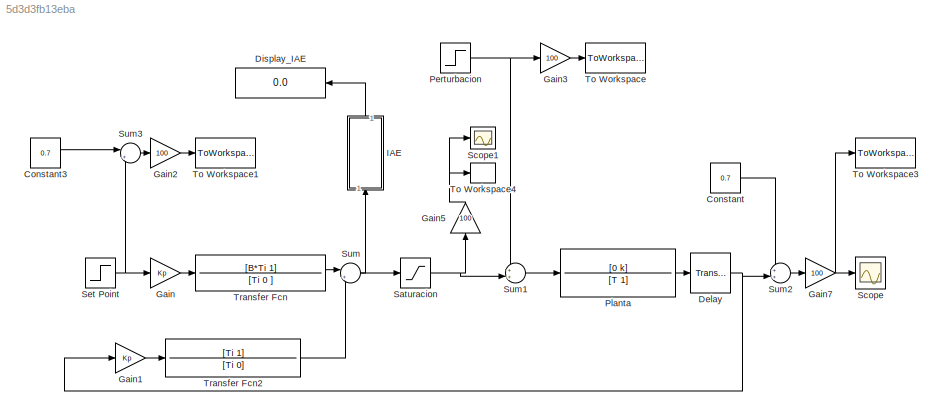
MODEL slx_5d3d3fb13eba
KIND model
CONFIG AbsTol = auto
CONFIG EnableMultiTasking = off
CONFIG FixedStep = auto
CONFIG MaxStep = auto
CONFIG MinStep = auto
CONFIG RelTol = 1e-3
CONFIG SampleTimeConstraint = Unconstrained
CONFIG Solver = VariableStepAuto
CONFIG SolverName = VariableStepAuto
CONFIG StartTime = 0.0
CONFIG StopTime = 150
BLOCK [Constant] Constant
  Value = 0.7
BLOCK [Constant] Constant3
  Value = 0.7
BLOCK [TransportDelay] Delay
  DelayTime = L
  Ports = [1, 1]
BLOCK [Display] Display_IAE 
  Decimation = 1
  Ports = [1]
BLOCK [Gain] Gain
  Gain = Kp
  OutDataTypeStr = Inherit: Inherit via internal rule
  ParamDataTypeStr = Inherit: Inherit via internal rule
  SaturateOnIntegerOverflow = off
BLOCK [Gain] Gain1
  Gain = Kp
  OutDataTypeStr = Inherit: Inherit via internal rule
  ParamDataTypeStr = Inherit: Inherit via internal rule
  SaturateOnIntegerOverflow = off
BLOCK [Gain] Gain2
  Gain = 100
  OutDataTypeStr = Inherit: Inherit via internal rule
  ParamDataTypeStr = Inherit: Inherit via internal rule
  SaturateOnIntegerOverflow = off
BLOCK [Gain] Gain3
  Gain = 100
  OutDataTypeStr = Inherit: Inherit via internal rule
  ParamDataTypeStr = Inherit: Inherit via internal rule
  SaturateOnIntegerOverflow = off
BLOCK [Gain] Gain5
  Gain = 100
  OutDataTypeStr = Inherit: Inherit via internal rule
  ParamDataTypeStr = Inherit: Inherit via internal rule
  SaturateOnIntegerOverflow = off
BLOCK [Gain] Gain7
  Gain = 100
  OutDataTypeStr = Inherit: Inherit via internal rule
  ParamDataTypeStr = Inherit: Inherit via internal rule
  SaturateOnIntegerOverflow = off
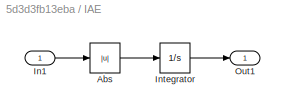
BLOCK [SubSystem] IAE
  Ports = [1, 1]
  RequestExecContextInheritance = off
BLOCK [Abs] IAE/Abs
  SaturateOnIntegerOverflow = off
BLOCK [Inport] IAE/In1
  IconDisplay = Port number
BLOCK [Integrator] IAE/Integrator
  Ports = [1, 1]
BLOCK [Outport] IAE/Out1
  IconDisplay = Port number
BLOCK [Step] Perturbacion
  After = -0.05
  SampleTime = 0
  Time = 30
BLOCK [TransferFcn] Planta
  Denominator = [T 1]
  Numerator = [0 k]
BLOCK [Saturate] Saturacion 
  InputPortMap = u0
  LowerLimit = -0.1
  Ports = [1, 1]
  UpperLimit = 1
BLOCK [Scope] Scope
  Floating = off
  NumInputPorts = 1
  Ports = [1]
  ScopeSpecificationString = Simulink.scopes.TimeScopeBlockCfg('CurrentConfiguration', extmgr.ConfigurationSet(extmgr.Configuration('Core','General UI',true),extmgr.Configuration('Core','Source UI',true),extmgr.Configuration('Sources','WiredSimulink',true),extmgr.Configuration('Visuals','Time Domain',true,'SerializedDisplays',{struct('MinYLimReal','46.5522','MaxYLimReal','83.71476','YLabelReal','','MinYLimMag','46.5522','MaxY...<+1356ch>
BLOCK [Scope] Scope1
  Floating = off
  NumInputPorts = 1
  Ports = [1]
  ScopeSpecificationString = Simulink.scopes.TimeScopeBlockCfg('CurrentConfiguration', extmgr.ConfigurationSet(extmgr.Configuration('Core','General UI',true),extmgr.Configuration('Core','Source UI',true),extmgr.Configuration('Sources','WiredSimulink',true,'DataLoggingVariableName','ScopeData1'),extmgr.Configuration('Visuals','Time Domain',true,'SerializedDisplays',{struct('MinYLimReal','0.45997','MaxYLimReal','6.70961','YLabe...<+1389ch>
BLOCK [Step] Set Point 
  After = 0.1
  SampleTime = 0
  Time = 0
BLOCK [Sum] Sum
  IconShape = round
  InputSameDT = off
  Inputs = |+-
  OutDataTypeStr = Inherit: Inherit via internal rule
  Ports = [2, 1]
  SaturateOnIntegerOverflow = off
BLOCK [Sum] Sum1
  IconShape = round
  InputSameDT = off
  Inputs = ++|
  OutDataTypeStr = Inherit: Inherit via internal rule
  Ports = [2, 1]
  SaturateOnIntegerOverflow = off
BLOCK [Sum] Sum2
  IconShape = round
  InputSameDT = off
  Inputs = ++|
  OutDataTypeStr = Inherit: Inherit via internal rule
  Ports = [2, 1]
  SaturateOnIntegerOverflow = off
BLOCK [Sum] Sum3
  IconShape = round
  InputSameDT = off
  Inputs = |++
  OutDataTypeStr = Inherit: Inherit via internal rule
  Ports = [2, 1]
  SaturateOnIntegerOverflow = off
BLOCK [ToWorkspace] To Workspace
  FixptAsFi = on
  MaxDataPoints = inf
  Ports = [1]
  SampleTime = -1
  Save2DSignal = 3-D array (concatenate along third dimension)
  SaveFormat = Timeseries
  VariableName = D2
BLOCK [ToWorkspace] To Workspace1
  FixptAsFi = on
  MaxDataPoints = inf
  Ports = [1]
  SampleTime = -1
  Save2DSignal = 3-D array (concatenate along third dimension)
  SaveFormat = Timeseries
  VariableName = SP2
BLOCK [ToWorkspace] To Workspace3
  FixptAsFi = on
  MaxDataPoints = inf
  Ports = [1]
  SampleTime = -1
  Save2DSignal = 3-D array (concatenate along third dimension)
  SaveFormat = Timeseries
  VariableName = Y2
BLOCK [ToWorkspace] To Workspace4
  FixptAsFi = on
  MaxDataPoints = inf
  Ports = [1]
  SampleTime = Ts
  Save2DSignal = 3-D array (concatenate along third dimension)
  SaveFormat = Timeseries
  VariableName = U2
BLOCK [TransferFcn] Transfer Fcn
  Denominator = [Ti 0 ]
  Numerator = [B*Ti 1]
BLOCK [TransferFcn] Transfer Fcn2
  Denominator = [Ti 0]
  Numerator = [Ti 1]
LINE Constant3:1 -> Sum3:1
LINE Constant:1 -> Sum2:1
NET Delay:1 -> Gain1:1, Sum2:2
LINE Gain1:1 -> Transfer Fcn2:1
LINE Gain2:1 -> To Workspace1:1
LINE Gain3:1 -> To Workspace:1
NET Gain5:1 -> Scope1:1, To Workspace4:1
NET Gain7:1 -> Scope:1, To Workspace3:1
LINE Gain:1 -> Transfer Fcn:1
LINE IAE/Abs:1 -> IAE/Integrator:1
LINE IAE/In1:1 -> IAE/Abs:1
LINE IAE/Integrator:1 -> IAE/Out1:1
LINE IAE:1 -> Display_IAE :1
NET Perturbacion:1 -> Gain3:1, Sum1:1
LINE Planta:1 -> Delay:1
NET Saturacion :1 -> Gain5:1, Sum1:2
NET Set Point :1 -> Gain:1, Sum3:2
LINE Sum1:1 -> Planta:1
LINE Sum2:1 -> Gain7:1
LINE Sum3:1 -> Gain2:1
NET Sum:1 -> IAE:1, Saturacion :1
LINE Transfer Fcn2:1 -> Sum:2
LINE Transfer Fcn:1 -> Sum:1
note: NET lines group one-source signal fan-out (src -> all destinations, sorted); 1:1 wires keep LINE
